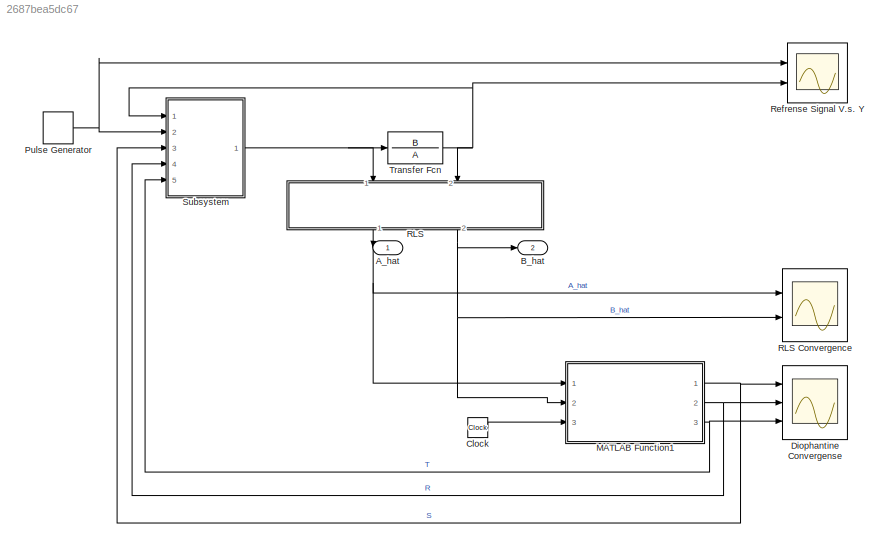
MODEL slx_2687bea5dc67
KIND model
CONFIG AbsTol = auto
CONFIG FixedStep = auto
CONFIG MaxStep = auto
CONFIG MinStep = 0.0000001
CONFIG RelTol = 1e-3
CONFIG SampleTimeConstraint = Unconstrained
CONFIG Solver = ode45
CONFIG SolverMode = SingleTasking
CONFIG SolverName = ode45
CONFIG StartTime = 0.0
CONFIG StopTime = 50
BLOCK [Outport] A_hat
BLOCK [Outport] B_hat
  Port = 2
BLOCK [Clock] Clock
BLOCK [Scope] Diophantine Convergense
  Floating = off
  NumInputPorts = 3
  Ports = [3]
  ScopeSpecificationString = Simulink.scopes.TimeScopeBlockCfg('CurrentConfiguration', extmgr.ConfigurationSet(extmgr.Configuration('Core','General UI',true),extmgr.Configuration('Core','Source UI',true),extmgr.Configuration('Sources','WiredSimulink',true,'DataLoggingVariableName','ScopeData1'),extmgr.Configuration('Visuals','Time Domain',true,'SerializedDisplays',{struct('MinYLimReal','-13.94608','MaxYLimReal','135.51468','Y...<+2698ch>
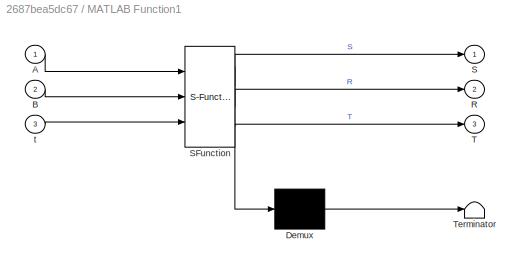
BLOCK [SubSystem] MATLAB Function1
  ErrorFcn = Stateflow.Translate.translate
  PermitHierarchicalResolution = ExplicitOnly
  Ports = [3, 3]
  RequestExecContextInheritance = off
  SFBlockType = MATLAB Function
  TreatAsAtomicUnit = on
BLOCK [Demux] MATLAB Function1/ Demux 
  Outputs = 1
  Ports = [1, 1]
BLOCK [S-Function] MATLAB Function1/ SFunction 
  EnableBusSupport = on
  FunctionName = sf_sfun
  PortCounts = [3 4]
  Ports = [3, 4]
  SFunctionDeploymentMode = off
  Tag = Stateflow S-Function Q410_sim_MATLAB2015 1
BLOCK [Terminator] MATLAB Function1/ Terminator 
BLOCK [Inport] MATLAB Function1/A
BLOCK [Inport] MATLAB Function1/B
  Port = 2
BLOCK [Outport] MATLAB Function1/R
  Port = 2
BLOCK [Outport] MATLAB Function1/S
BLOCK [Outport] MATLAB Function1/T
  Port = 3
BLOCK [Inport] MATLAB Function1/t
  Port = 3
BLOCK [DiscretePulseGenerator] Pulse Generator
  Period = 6
  Ports = [0, 1]
  PulseType = Time based
  PulseWidth = 50
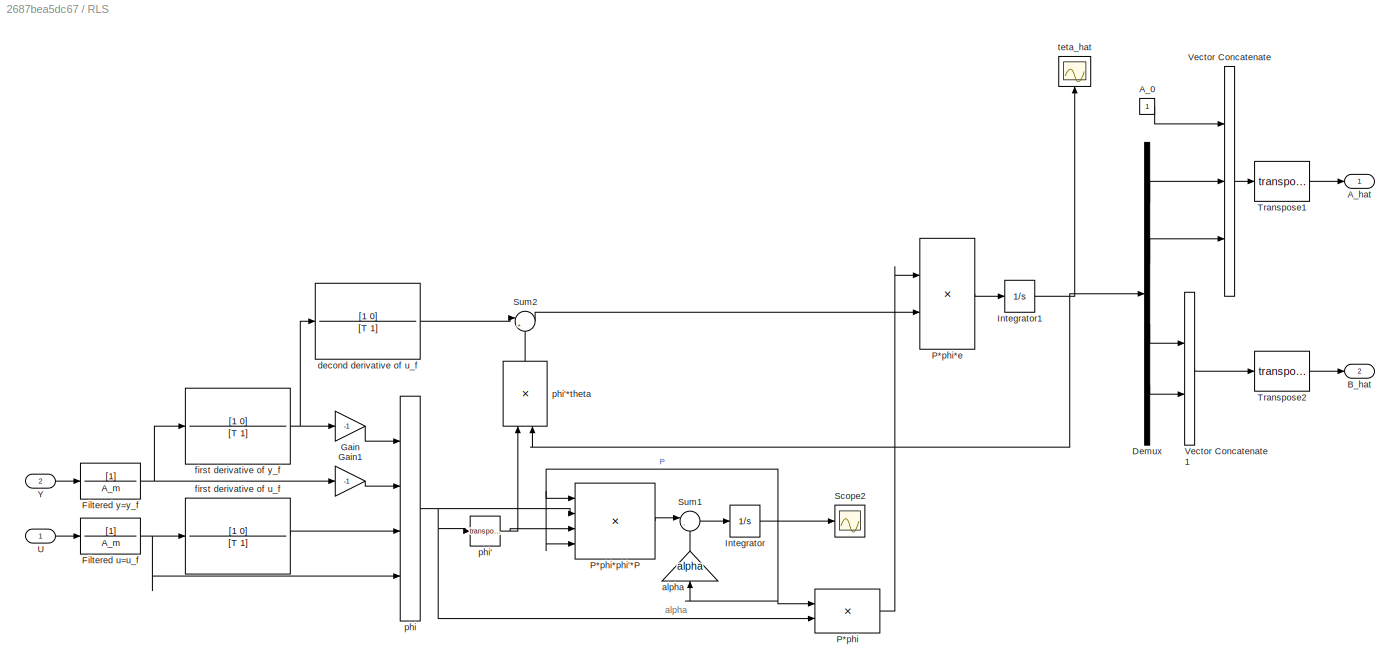
BLOCK [SubSystem] RLS
  Ports = [2, 2]
  RequestExecContextInheritance = off
BLOCK [Scope] RLS Convergence
  Floating = off
  NumInputPorts = 2
  Ports = [2]
  ScopeSpecificationString = Simulink.scopes.TimeScopeBlockCfg('CurrentConfiguration', extmgr.ConfigurationSet(extmgr.Configuration('Core','General UI',true),extmgr.Configuration('Core','Source UI',true),extmgr.Configuration('Sources','WiredSimulink',true,'DataLoggingVariableName','ScopeData1'),extmgr.Configuration('Visuals','Time Domain',true,'SerializedDisplays',{struct('MinYLimReal','-0.55711','MaxYLimReal','4.01669','YLab...<+2016ch>
BLOCK [Constant] RLS/A_0
BLOCK [Outport] RLS/A_hat
BLOCK [Outport] RLS/B_hat
  Port = 2
BLOCK [Demux] RLS/Demux
  Ports = [1, 4]
BLOCK [TransferFcn] RLS/Filtered u=u_f
  Denominator = A_m
BLOCK [TransferFcn] RLS/Filtered y=y_f
  Denominator = A_m
BLOCK [Gain] RLS/Gain
  Gain = -1
BLOCK [Gain] RLS/Gain1
  Gain = -1
BLOCK [Integrator] RLS/Integrator
  InitialCondition = P_0
  LimitOutput = on
  Ports = [1, 1]
BLOCK [Integrator] RLS/Integrator1
  InitialCondition = [0,0,0,0]
  LowerSaturationLimit = -100
  Ports = [1, 1]
  UpperSaturationLimit = 100
  ZeroCross = off
BLOCK [Product] RLS/P*phi
  Multiplication = Matrix(*)
  Ports = [2, 1]
BLOCK [Product] RLS/P*phi*e
  Multiplication = Matrix(*)
  Ports = [2, 1]
BLOCK [Product] RLS/P*phi*phi'*P
  Inputs = 4
  Multiplication = Matrix(*)
  Ports = [4, 1]
BLOCK [Scope] RLS/Scope2
  Floating = off
  NumInputPorts = 1
  Ports = [1]
  ScopeSpecificationString = Simulink.scopes.TimeScopeBlockCfg('CurrentConfiguration', extmgr.ConfigurationSet(extmgr.Configuration('Core','General UI',true),extmgr.Configuration('Core','Source UI',true),extmgr.Configuration('Sources','WiredSimulink',true,'DataLogging',true,'DataLoggingVariableName','ScopeData1','DataLoggingSaveFormat','StructureWithTime','DataLoggingDecimation','1','DataLoggingDecimateData',true),extmgr.Conf...<+2057ch>
BLOCK [Sum] RLS/Sum1
  Inputs = |-+
  Ports = [2, 1]
BLOCK [Sum] RLS/Sum2
  Inputs = |+-
  Ports = [2, 1]
BLOCK [Math] RLS/Transpose1
  Operator = transpose
  Ports = [1, 1]
BLOCK [Math] RLS/Transpose2
  Operator = transpose
  Ports = [1, 1]
BLOCK [Inport] RLS/U
BLOCK [Concatenate] RLS/Vector Concatenate
  NumInputs = 3
  Ports = [3, 1]
BLOCK [Concatenate] RLS/Vector Concatenate1
  Ports = [2, 1]
BLOCK [Inport] RLS/Y
  Port = 2
BLOCK [Gain] RLS/alpha
  Gain = alpha
BLOCK [TransferFcn] RLS/decond derivative of u_f
  Denominator = [T 1]
  Numerator = [1 0]
BLOCK [TransferFcn] RLS/first derivative of u_f
  Denominator = [T 1]
  Numerator = [1 0]
BLOCK [TransferFcn] RLS/first derivative of y_f
  Denominator = [T 1]
  Numerator = [1 0]
BLOCK [Concatenate] RLS/phi
  NumInputs = 4
  Ports = [4, 1]
BLOCK [Math] RLS/phi'
  Operator = transpose
  Ports = [1, 1]
BLOCK [Product] RLS/phi'*theta
  Multiplication = Matrix(*)
  Ports = [2, 1]
BLOCK [Scope] RLS/teta_hat 
  Floating = off
  NumInputPorts = 1
  Ports = [1]
  ScopeSpecificationString = Simulink.scopes.TimeScopeBlockCfg('CurrentConfiguration', extmgr.ConfigurationSet(extmgr.Configuration('Core','General UI',true),extmgr.Configuration('Core','Source UI',true),extmgr.Configuration('Sources','WiredSimulink',true,'DataLogging',true,'DataLoggingVariableName','ScopeData2','DataLoggingSaveFormat','StructureWithTime','DataLoggingDecimation','1','DataLoggingDecimateData',true),extmgr.Conf...<+1831ch>
BLOCK [Scope] Refrense Signal V.s. Y
  Floating = off
  NumInputPorts = 2
  Ports = [2]
  ScopeSpecificationString = Simulink.scopes.TimeScopeBlockCfg('CurrentConfiguration', extmgr.ConfigurationSet(extmgr.Configuration('Core','General UI',true),extmgr.Configuration('Core','Source UI',true),extmgr.Configuration('Sources','WiredSimulink',true),extmgr.Configuration('Visuals','Time Domain',true,'SerializedDisplays',{struct('MinYLimReal','-0.19818','MaxYLimReal','1.19816','YLabelReal','','MinYLimMag','0.00000','MaxY...<+1387ch>
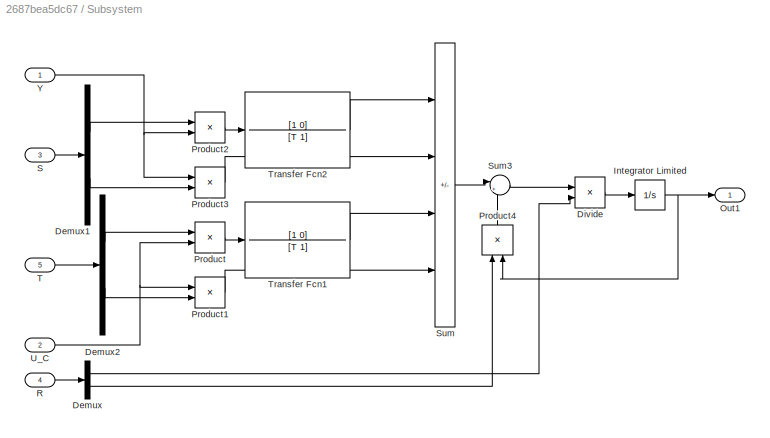
BLOCK [SubSystem] Subsystem
  Ports = [5, 1]
  RequestExecContextInheritance = off
BLOCK [Demux] Subsystem/Demux
  Outputs = 2
  Ports = [1, 2]
BLOCK [Demux] Subsystem/Demux1
  Outputs = 2
  Ports = [1, 2]
BLOCK [Demux] Subsystem/Demux2
  Outputs = 2
  Ports = [1, 2]
BLOCK [Product] Subsystem/Divide
  Inputs = */
  Ports = [2, 1]
BLOCK [Integrator] Subsystem/Integrator Limited
  LimitOutput = on
  LowerSaturationLimit = -1000
  Ports = [1, 1]
  UpperSaturationLimit = 1000
BLOCK [Outport] Subsystem/Out1
BLOCK [Product] Subsystem/Product
  Ports = [2, 1]
BLOCK [Product] Subsystem/Product1
  Ports = [2, 1]
BLOCK [Product] Subsystem/Product2
  Ports = [2, 1]
BLOCK [Product] Subsystem/Product3
  Ports = [2, 1]
BLOCK [Product] Subsystem/Product4
  Ports = [2, 1]
BLOCK [Inport] Subsystem/R
  Port = 4
BLOCK [Inport] Subsystem/S
  Port = 3
BLOCK [Sum] Subsystem/Sum
  IconShape = rectangular
  Inputs = |--++
  Ports = [4, 1]
BLOCK [Sum] Subsystem/Sum3
  Inputs = |+-
  Ports = [2, 1]
BLOCK [Inport] Subsystem/T
  Port = 5
BLOCK [TransferFcn] Subsystem/Transfer Fcn1
  Denominator = [T 1]
  Numerator = [1 0]
BLOCK [TransferFcn] Subsystem/Transfer Fcn2
  Denominator = [T 1]
  Numerator = [1 0]
BLOCK [Inport] Subsystem/U_C
  Port = 2
BLOCK [Inport] Subsystem/Y
BLOCK [TransferFcn] Transfer Fcn
  Denominator = A
  Numerator = B
ANNOTATION RLS: alpha
LINE Clock:1 -> MATLAB Function1:3
NET MATLAB Function1:1 -> Diophantine Convergense:1, Subsystem:3
NET MATLAB Function1:2 -> Diophantine Convergense:2, Subsystem:4
NET MATLAB Function1:3 -> Diophantine Convergense:3, Subsystem:5
NET Pulse Generator:1 -> Refrense Signal V.s. Y:1, Subsystem:2
LINE RLS/A_0:1 -> RLS/Vector Concatenate:1
LINE RLS/Demux:1 -> RLS/Vector Concatenate:2
LINE RLS/Demux:2 -> RLS/Vector Concatenate:3
LINE RLS/Demux:3 -> RLS/Vector Concatenate1:1
LINE RLS/Demux:4 -> RLS/Vector Concatenate1:2
NET RLS/Filtered u=u_f:1 -> RLS/first derivative of u_f:1, RLS/phi:4
NET RLS/Filtered y=y_f:1 -> RLS/Gain1:1, RLS/first derivative of y_f:1
LINE RLS/Gain1:1 -> RLS/phi:2
LINE RLS/Gain:1 -> RLS/phi:1
NET RLS/Integrator1:1 -> RLS/Demux:1, RLS/phi'*theta:2, RLS/teta_hat :1
NET RLS/Integrator:1 -> RLS/P*phi*phi'*P:1, RLS/P*phi*phi'*P:4, RLS/P*phi:1, RLS/Scope2:1, RLS/alpha:1
LINE RLS/P*phi*e:1 -> RLS/Integrator1:1
LINE RLS/P*phi*phi'*P:1 -> RLS/Sum1:1
LINE RLS/P*phi:1 -> RLS/P*phi*e:1
LINE RLS/Sum1:1 -> RLS/Integrator:1
LINE RLS/Sum2:1 -> RLS/P*phi*e:2
LINE RLS/Transpose1:1 -> RLS/A_hat:1
LINE RLS/Transpose2:1 -> RLS/B_hat:1
LINE RLS/U:1 -> RLS/Filtered u=u_f:1
LINE RLS/Vector Concatenate1:1 -> RLS/Transpose2:1
LINE RLS/Vector Concatenate:1 -> RLS/Transpose1:1
LINE RLS/Y:1 -> RLS/Filtered y=y_f:1
LINE RLS/alpha:1 -> RLS/Sum1:2
LINE RLS/decond derivative of u_f:1 -> RLS/Sum2:1
LINE RLS/first derivative of u_f:1 -> RLS/phi:3
NET RLS/first derivative of y_f:1 -> RLS/Gain:1, RLS/decond derivative of u_f:1
LINE RLS/phi'*theta:1 -> RLS/Sum2:2
NET RLS/phi':1 -> RLS/P*phi*phi'*P:3, RLS/phi'*theta:1
NET RLS/phi:1 -> RLS/P*phi*phi'*P:2, RLS/P*phi:2, RLS/phi':1
NET RLS:1 -> A_hat:1, MATLAB Function1:1, RLS Convergence:1
NET RLS:2 -> B_hat:1, MATLAB Function1:2, RLS Convergence:2
LINE Subsystem/Demux1:1 -> Subsystem/Product2:1
LINE Subsystem/Demux1:2 -> Subsystem/Product3:2
LINE Subsystem/Demux2:1 -> Subsystem/Product:1
LINE Subsystem/Demux2:2 -> Subsystem/Product1:2
LINE Subsystem/Demux:1 -> Subsystem/Divide:2
LINE Subsystem/Demux:2 -> Subsystem/Product4:1
LINE Subsystem/Divide:1 -> Subsystem/Integrator Limited:1
NET Subsystem/Integrator Limited:1 -> Subsystem/Out1:1, Subsystem/Product4:2
LINE Subsystem/Product1:1 -> Subsystem/Sum:4
LINE Subsystem/Product2:1 -> Subsystem/Transfer Fcn2:1
LINE Subsystem/Product3:1 -> Subsystem/Sum:2
LINE Subsystem/Product4:1 -> Subsystem/Sum3:2
LINE Subsystem/Product:1 -> Subsystem/Transfer Fcn1:1
LINE Subsystem/R:1 -> Subsystem/Demux:1
LINE Subsystem/S:1 -> Subsystem/Demux1:1
LINE Subsystem/Sum3:1 -> Subsystem/Divide:1
LINE Subsystem/Sum:1 -> Subsystem/Sum3:1
LINE Subsystem/T:1 -> Subsystem/Demux2:1
LINE Subsystem/Transfer Fcn1:1 -> Subsystem/Sum:3
LINE Subsystem/Transfer Fcn2:1 -> Subsystem/Sum:1
NET Subsystem/U_C:1 -> Subsystem/Product1:1, Subsystem/Product:2
NET Subsystem/Y:1 -> Subsystem/Product2:2, Subsystem/Product3:1
NET Subsystem:1 -> RLS:1, Transfer Fcn:1
NET Transfer Fcn:1 -> RLS:2, Refrense Signal V.s. Y:2, Subsystem:1
note: NET lines group one-source signal fan-out (src -> all destinations, sorted); 1:1 wires keep LINE
CHART MATLAB Function1 states=1 transitions=1
  STATE_LABEL 'eML_blk_kernel()'
  STATE_LABEL "SCRIPT:\nfunction [ S, R ,T] = Diophantine(A,B,t )\nif t>0.1\n%% Calculating orders\n\nomega_n=6;\nzeta   =0.67;\nA_m    =[1 2*zeta*omega_n omega_n^2];\nA_o=[1 10];\nA_c=conv(A_o,A_m);\n\nalpha=conv(A_o,A_m);\nd=1;\nif(d<=0)\n    disp('error, the delay d must be >=1')\nend\nna = length(A)-1;\nnb = length(B)-1;\nnr = nb + d - 1;\nns = na - 1;\nnalpha = na + nb +d - 1;\n\n%% initialization of M matrix and V matrix\nM = ze...<+472ch>"
